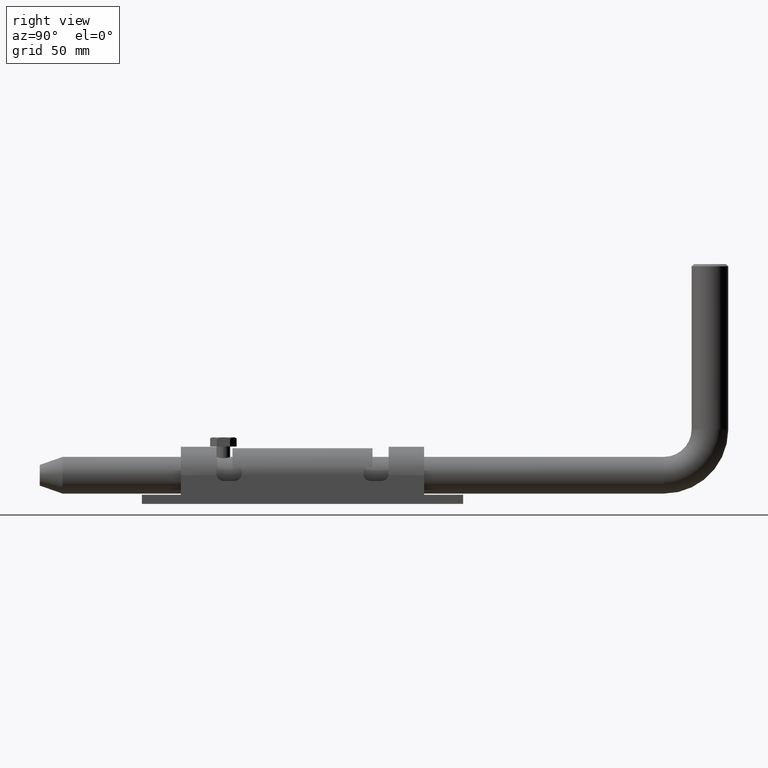
[diagram: clean part render]
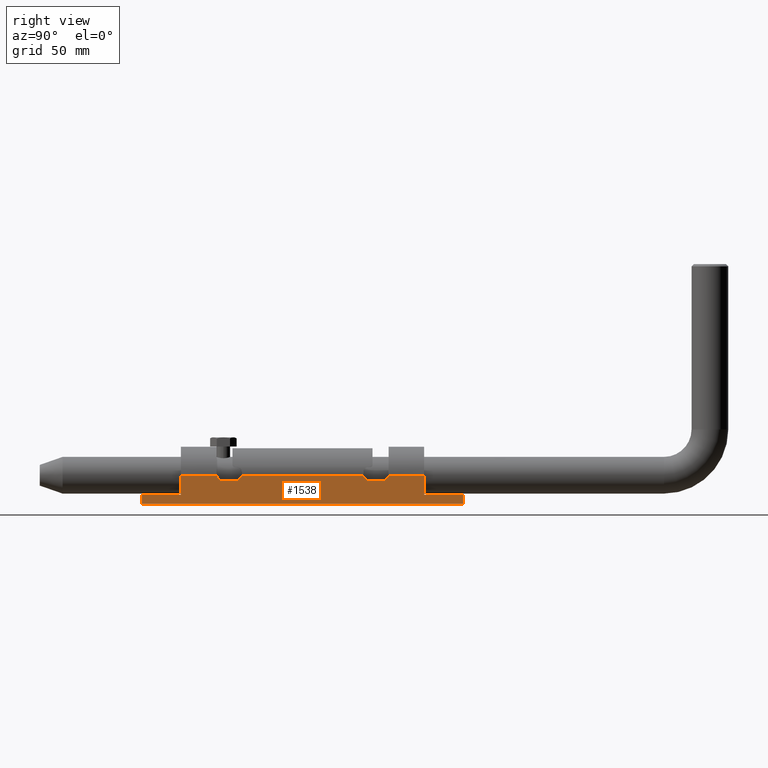
[diagram: same view with one face highlighted and labeled with its STEP entity id]
A machine part, right view. The second image highlights one B-rep face of the part: STEP entity #1538.
In plain terms, the highlighted planar face has unit normal (-1, -0, 0).
Its self-contained STEP definition (entity closure, byte-faithful):
#202 = ORIENTED_EDGE ( 'NONE', *, *, #18999, .T. ) ;
#253 = CARTESIAN_POINT ( 'NONE',  ( 12.49999999999999112, 53.00000000000000000, 10.50000000000001066 ) ) ;
#306 = VECTOR ( 'NONE', #7138, 1000.000000000000000 ) ;
#536 = DIRECTION ( 'NONE',  ( -0.000000000000000000, -1.000000000000000000, -0.000000000000000000 ) ) ;
#574 = ORIENTED_EDGE ( 'NONE', *, *, #15340, .T. ) ;
#826 = CIRCLE ( 'NONE', #21028, 2.999999999999999112 ) ;
#1430 = DIRECTION ( 'NONE',  ( -1.239088197126290570E-16, 1.000000000000000000, -0.000000000000000000 ) ) ;
#1529 = CARTESIAN_POINT ( 'NONE',  ( 12.49999999999999289, 29.50000000000000355, 11.00000000000000000 ) ) ;
#1538 = ADVANCED_FACE ( 'NONE', ( #12037 ), #2101, .F. ) ;
#1599 = ORIENTED_EDGE ( 'NONE', *, *, #8915, .T. ) ;
#1762 = LINE ( 'NONE', #10439, #10041 ) ;
#1837 = LINE ( 'NONE', #5269, #10366 ) ;
#1838 = CARTESIAN_POINT ( 'NONE',  ( 12.49999999999999112, 70.00000000000000000, 2.000000000000000000 ) ) ;
#1931 = DIRECTION ( 'NONE',  ( 0.000000000000000000, -1.000000000000000000, 0.000000000000000000 ) ) ;
#2035 = VECTOR ( 'NONE', #9616, 1000.000000000000000 ) ;
#2101 = PLANE ( 'NONE',  #13933 ) ;
#2150 = DIRECTION ( 'NONE',  ( -0.000000000000000000, -0.000000000000000000, -1.000000000000000000 ) ) ;
#2242 = DIRECTION ( 'NONE',  ( 1.239088197126290817E-16, -1.000000000000000000, 0.000000000000000000 ) ) ;
#2245 = VERTEX_POINT ( 'NONE', #7766 ) ;
#2247 = ORIENTED_EDGE ( 'NONE', *, *, #7703, .T. ) ;
#2289 = EDGE_CURVE ( 'NONE', #11913, #15566, #10729, .T. ) ;
#2317 = LINE ( 'NONE', #10806, #20168 ) ;
#2616 = CARTESIAN_POINT ( 'NONE',  ( 12.49999999999999112, 26.54196010845019416, 10.50000000000001066 ) ) ;
#2700 = ORIENTED_EDGE ( 'NONE', *, *, #4492, .T. ) ;
#2783 = CARTESIAN_POINT ( 'NONE',  ( 12.50000000000000711, -70.00000000000000000, 2.000000000000000000 ) ) ;
#2795 = LINE ( 'NONE', #19517, #2035 ) ;
#2888 = EDGE_CURVE ( 'NONE', #15566, #7410, #6826, .T. ) ;
#2992 = CARTESIAN_POINT ( 'NONE',  ( 12.50000000000000711, -29.50000000000000355, 8.000000000000000000 ) ) ;
#2993 = VECTOR ( 'NONE', #3872, 1000.000000000000000 ) ;
#3192 = CARTESIAN_POINT ( 'NONE',  ( 12.49999999999999112, 70.00000000000000000, 2.000000000000000000 ) ) ;
#3222 = CARTESIAN_POINT ( 'NONE',  ( 12.49999999999999112, -37.45803989154979519, 10.50000000000001066 ) ) ;
#3433 = ORIENTED_EDGE ( 'NONE', *, *, #9843, .F. ) ;
#3554 = ORIENTED_EDGE ( 'NONE', *, *, #4781, .F. ) ;
#3872 = DIRECTION ( 'NONE',  ( 0.000000000000000000, -1.000000000000000000, 0.000000000000000000 ) ) ;
#4027 = LINE ( 'NONE', #21082, #16947 ) ;
#4031 = ORIENTED_EDGE ( 'NONE', *, *, #14906, .T. ) ;
#4077 = AXIS2_PLACEMENT_3D ( 'NONE', #8290, #14884, #1931 ) ;
#4368 = EDGE_CURVE ( 'NONE', #18710, #5136, #8016, .T. ) ;
#4442 = VECTOR ( 'NONE', #21453, 1000.000000000000000 ) ;
#4492 = EDGE_CURVE ( 'NONE', #9151, #17529, #2317, .T. ) ;
#4781 = EDGE_CURVE ( 'NONE', #11913, #2245, #14485, .T. ) ;
#4789 = VECTOR ( 'NONE', #18869, 1000.000000000000000 ) ;
#4891 = CARTESIAN_POINT ( 'NONE',  ( 12.49999999999999467, 34.49999999999999289, 11.00000000000000000 ) ) ;
#4970 = CARTESIAN_POINT ( 'NONE',  ( 12.49999999999999112, 70.00000000000000000, -2.000000000000000000 ) ) ;
#5136 = VERTEX_POINT ( 'NONE', #12617 ) ;
#5269 = CARTESIAN_POINT ( 'NONE',  ( 12.50000000000000711, -70.00000000000000000, 2.000000000000000000 ) ) ;
#5588 = DIRECTION ( 'NONE',  ( -0.000000000000000000, -0.000000000000000000, -1.000000000000000000 ) ) ;
#5647 = EDGE_CURVE ( 'NONE', #2245, #18710, #2795, .T. ) ;
#5939 = CARTESIAN_POINT ( 'NONE',  ( 12.49999999999999112, 53.00000000000000000, 10.50000000000001066 ) ) ;
#6476 = DIRECTION ( 'NONE',  ( -0.000000000000000000, -1.000000000000000000, -0.000000000000000000 ) ) ;
#6657 = CARTESIAN_POINT ( 'NONE',  ( 12.50000000000000711, 34.49999999999999289, 8.000000000000000000 ) ) ;
#6826 = CIRCLE ( 'NONE', #14342, 3.000000000000002665 ) ;
#6975 = CARTESIAN_POINT ( 'NONE',  ( 12.50000000000000711, -34.49999999999999289, 8.000000000000000000 ) ) ;
#6992 = CARTESIAN_POINT ( 'NONE',  ( 12.49999999999999112, -26.54196010845019060, 10.50000000000001066 ) ) ;
#7086 = DIRECTION ( 'NONE',  ( -1.000000000000000000, -1.239088197126290817E-16, 0.000000000000000000 ) ) ;
#7138 = DIRECTION ( 'NONE',  ( 0.000000000000000000, 0.000000000000000000, -1.000000000000000000 ) ) ;
#7157 = EDGE_CURVE ( 'NONE', #10914, #14908, #1762, .T. ) ;
#7225 = CARTESIAN_POINT ( 'NONE',  ( 12.49999999999999112, 70.00000000000000000, 2.000000000000000000 ) ) ;
#7289 = CARTESIAN_POINT ( 'NONE',  ( 12.50000000000000711, -37.50000000000000000, 8.000000000000000000 ) ) ;
#7410 = VERTEX_POINT ( 'NONE', #6657 ) ;
#7703 = EDGE_CURVE ( 'NONE', #10773, #10914, #8964, .T. ) ;
#7766 = CARTESIAN_POINT ( 'NONE',  ( 12.49999999999999112, 53.00000000000000000, 2.000000000000000000 ) ) ;
#7948 = DIRECTION ( 'NONE',  ( 0.000000000000000000, -1.000000000000000000, 0.000000000000000000 ) ) ;
#8016 = LINE ( 'NONE', #1838, #11135 ) ;
#8216 = DIRECTION ( 'NONE',  ( 0.000000000000000000, -1.000000000000000000, 0.000000000000000000 ) ) ;
#8229 = VERTEX_POINT ( 'NONE', #19491 ) ;
#8290 = CARTESIAN_POINT ( 'NONE',  ( 12.50000000000000355, -34.49999999999999289, 11.00000000000000000 ) ) ;
#8512 = CARTESIAN_POINT ( 'NONE',  ( 12.50000000000000711, -70.00000000000000000, -2.000000000000000000 ) ) ;
#8642 = CARTESIAN_POINT ( 'NONE',  ( 12.50000000000000711, 37.50000000000000000, 8.000000000000000000 ) ) ;
#8657 = CARTESIAN_POINT ( 'NONE',  ( 12.49999999999999112, -53.00000000000000000, 10.50000000000001066 ) ) ;
#8821 = LINE ( 'NONE', #12434, #306 ) ;
#8915 = EDGE_CURVE ( 'NONE', #7410, #10773, #10240, .T. ) ;
#8964 = CIRCLE ( 'NONE', #10417, 2.999999999999999112 ) ;
#9063 = EDGE_CURVE ( 'NONE', #9066, #8229, #4027, .T. ) ;
#9066 = VERTEX_POINT ( 'NONE', #2783 ) ;
#9093 = ORIENTED_EDGE ( 'NONE', *, *, #4368, .F. ) ;
#9151 = VERTEX_POINT ( 'NONE', #3222 ) ;
#9616 = DIRECTION ( 'NONE',  ( -1.239088197126290570E-16, 1.000000000000000000, -0.000000000000000000 ) ) ;
#9843 = EDGE_CURVE ( 'NONE', #15649, #11318, #15134, .T. ) ;
#10041 = VECTOR ( 'NONE', #536, 1000.000000000000000 ) ;
#10085 = CARTESIAN_POINT ( 'NONE',  ( 12.50000000000000711, 29.50000000000000355, 8.000000000000000000 ) ) ;
#10170 = ORIENTED_EDGE ( 'NONE', *, *, #18903, .T. ) ;
#10240 = LINE ( 'NONE', #8642, #2993 ) ;
#10351 = ORIENTED_EDGE ( 'NONE', *, *, #15364, .T. ) ;
#10366 = VECTOR ( 'NONE', #2150, 1000.000000000000000 ) ;
#10417 = AXIS2_PLACEMENT_3D ( 'NONE', #1529, #19733, #7948 ) ;
#10439 = CARTESIAN_POINT ( 'NONE',  ( 12.49999999999999112, 53.00000000000000000, 10.50000000000001066 ) ) ;
#10711 = ORIENTED_EDGE ( 'NONE', *, *, #5647, .F. ) ;
#10729 = LINE ( 'NONE', #16387, #12538 ) ;
#10773 = VERTEX_POINT ( 'NONE', #10085 ) ;
#10806 = CARTESIAN_POINT ( 'NONE',  ( 12.49999999999999112, 53.00000000000000000, 10.50000000000001066 ) ) ;
#10807 = EDGE_LOOP ( 'NONE', ( #21285, #16490, #1599, #2247, #21243, #202, #3433, #574, #2700, #10170, #20275, #4031, #10351, #9093, #10711, #3554 ) ) ;
#10911 = DIRECTION ( 'NONE',  ( 0.000000000000000000, -1.000000000000000000, 0.000000000000000000 ) ) ;
#10914 = VERTEX_POINT ( 'NONE', #2616 ) ;
#11135 = VECTOR ( 'NONE', #5588, 1000.000000000000000 ) ;
#11318 = VERTEX_POINT ( 'NONE', #2992 ) ;
#11913 = VERTEX_POINT ( 'NONE', #5939 ) ;
#12037 = FACE_OUTER_BOUND ( 'NONE', #10807, .T. ) ;
#12434 = CARTESIAN_POINT ( 'NONE',  ( 12.49999999999999112, -53.00000000000000000, 10.50000000000001066 ) ) ;
#12538 = VECTOR ( 'NONE', #6476, 1000.000000000000000 ) ;
#12617 = CARTESIAN_POINT ( 'NONE',  ( 12.49999999999999112, 70.00000000000000000, -2.000000000000000000 ) ) ;
#12729 = LINE ( 'NONE', #4970, #4442 ) ;
#13776 = DIRECTION ( 'NONE',  ( 0.000000000000000000, 0.000000000000000000, -1.000000000000000000 ) ) ;
#13933 = AXIS2_PLACEMENT_3D ( 'NONE', #7225, #7086, #2242 ) ;
#14342 = AXIS2_PLACEMENT_3D ( 'NONE', #4891, #14738, #8216 ) ;
#14485 = LINE ( 'NONE', #253, #18866 ) ;
#14567 = DIRECTION ( 'NONE',  ( -0.000000000000000000, -1.000000000000000000, -0.000000000000000000 ) ) ;
#14738 = DIRECTION ( 'NONE',  ( -1.000000000000000000, -1.239088197126290817E-16, 0.000000000000000000 ) ) ;
#14840 = VERTEX_POINT ( 'NONE', #8512 ) ;
#14884 = DIRECTION ( 'NONE',  ( -1.000000000000000000, -1.239088197126290817E-16, 0.000000000000000000 ) ) ;
#14906 = EDGE_CURVE ( 'NONE', #9066, #14840, #1837, .T. ) ;
#14908 = VERTEX_POINT ( 'NONE', #6992 ) ;
#15134 = LINE ( 'NONE', #7289, #4789 ) ;
#15340 = EDGE_CURVE ( 'NONE', #15649, #9151, #19958, .T. ) ;
#15364 = EDGE_CURVE ( 'NONE', #14840, #5136, #12729, .T. ) ;
#15566 = VERTEX_POINT ( 'NONE', #19940 ) ;
#15649 = VERTEX_POINT ( 'NONE', #6975 ) ;
#16387 = CARTESIAN_POINT ( 'NONE',  ( 12.49999999999999112, 53.00000000000000000, 10.50000000000001066 ) ) ;
#16490 = ORIENTED_EDGE ( 'NONE', *, *, #2888, .T. ) ;
#16947 = VECTOR ( 'NONE', #1430, 1000.000000000000000 ) ;
#17529 = VERTEX_POINT ( 'NONE', #8657 ) ;
#18710 = VERTEX_POINT ( 'NONE', #3192 ) ;
#18866 = VECTOR ( 'NONE', #13776, 1000.000000000000000 ) ;
#18869 = DIRECTION ( 'NONE',  ( 0.000000000000000000, 1.000000000000000000, 0.000000000000000000 ) ) ;
#18903 = EDGE_CURVE ( 'NONE', #17529, #8229, #8821, .T. ) ;
#18999 = EDGE_CURVE ( 'NONE', #14908, #11318, #826, .T. ) ;
#19491 = CARTESIAN_POINT ( 'NONE',  ( 12.49999999999999112, -53.00000000000000000, 2.000000000000000000 ) ) ;
#19517 = CARTESIAN_POINT ( 'NONE',  ( 12.49999999999999112, 70.00000000000000000, 2.000000000000000000 ) ) ;
#19733 = DIRECTION ( 'NONE',  ( -1.000000000000000000, -1.239088197126290817E-16, 0.000000000000000000 ) ) ;
#19940 = CARTESIAN_POINT ( 'NONE',  ( 12.49999999999999112, 37.45803989154980229, 10.50000000000001066 ) ) ;
#19958 = CIRCLE ( 'NONE', #4077, 3.000000000000002665 ) ;
#20168 = VECTOR ( 'NONE', #14567, 1000.000000000000000 ) ;
#20275 = ORIENTED_EDGE ( 'NONE', *, *, #9063, .F. ) ;
#20738 = DIRECTION ( 'NONE',  ( -1.000000000000000000, -1.239088197126290817E-16, 0.000000000000000000 ) ) ;
#20949 = CARTESIAN_POINT ( 'NONE',  ( 12.50000000000000355, -29.50000000000000355, 11.00000000000000000 ) ) ;
#21028 = AXIS2_PLACEMENT_3D ( 'NONE', #20949, #20738, #10911 ) ;
#21082 = CARTESIAN_POINT ( 'NONE',  ( 12.49999999999999112, 70.00000000000000000, 2.000000000000000000 ) ) ;
#21243 = ORIENTED_EDGE ( 'NONE', *, *, #7157, .T. ) ;
#21285 = ORIENTED_EDGE ( 'NONE', *, *, #2289, .T. ) ;
#21453 = DIRECTION ( 'NONE',  ( -1.239088197126290570E-16, 1.000000000000000000, -0.000000000000000000 ) ) ;